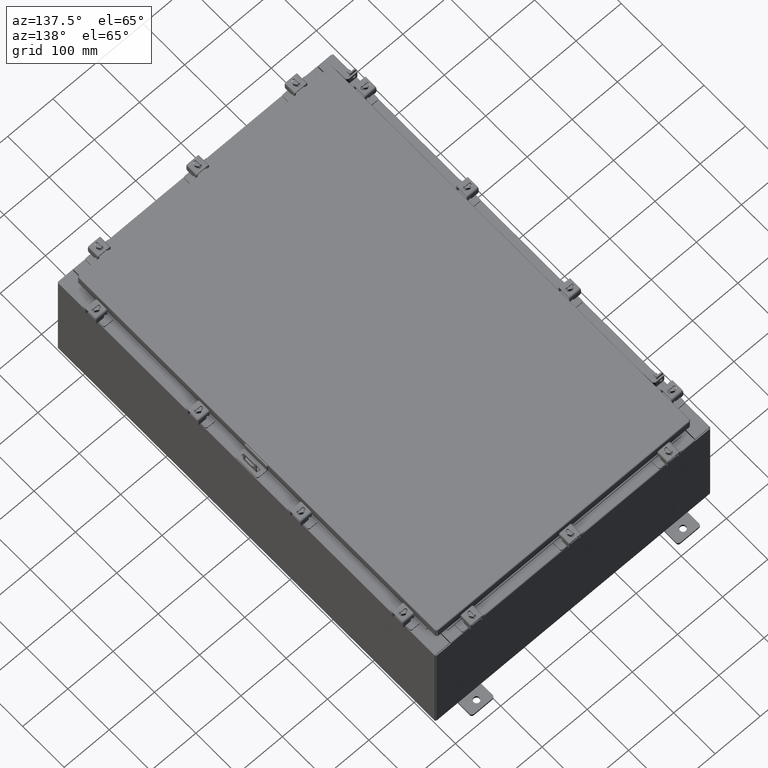
[diagram: clean part render]
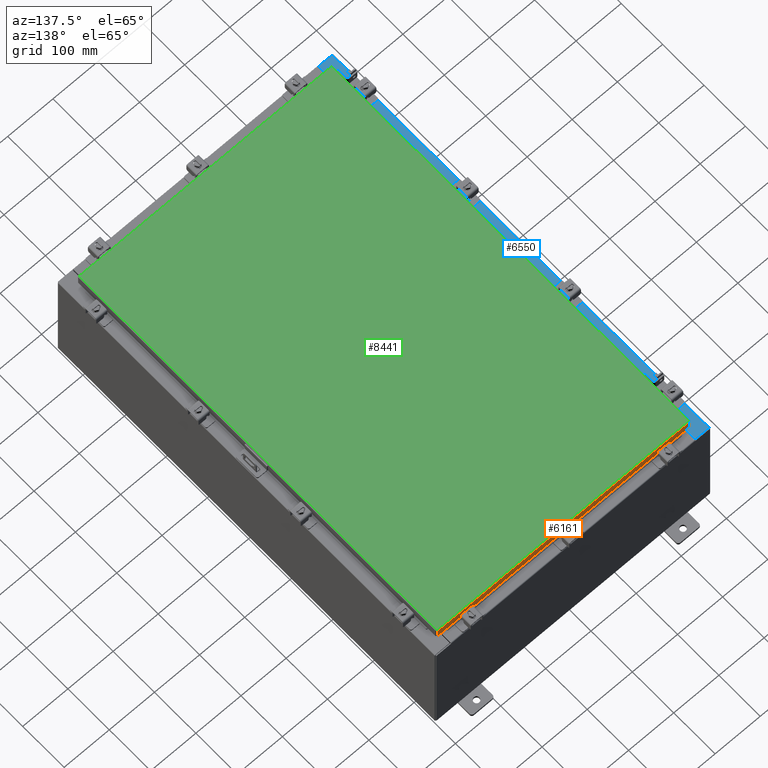
[diagram: same view with three faces highlighted in distinct colors, each labeled with its STEP entity id]
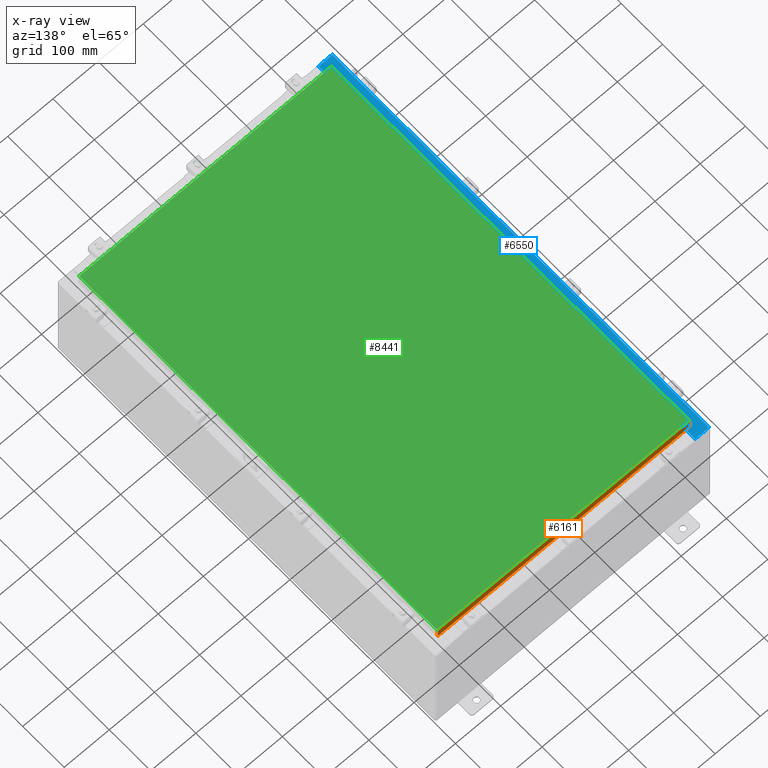
[diagram: x-ray of the same camera — body ghosted, the three highlighted faces saturated]
A machine part, auxiliary view with three faces highlighted in distinct colors.
The next image is the same camera in x-ray (body ghosted, the three faces saturated) — at least one of them is partly hidden behind the body in this view.
Their STEP definitions:

[orange] entity #6161 — the highlighted planar face has unit normal (0, -1, -0).
#257 = ORIENTED_EDGE ( 'NONE', *, *, #5360, .F. ) ;
#366 = DIRECTION ( 'NONE',  ( -1.000000000000000000, -3.475696988576942200E-031, -9.473942235605600700E-046 ) ) ;
#1143 = VERTEX_POINT ( 'NONE', #15936 ) ;
#1236 = DIRECTION ( 'NONE',  ( 1.000000000000000000, -0.0000000000000000000, -0.0000000000000000000 ) ) ;
#1564 = VERTEX_POINT ( 'NONE', #11333 ) ;
#1575 = CARTESIAN_POINT ( 'NONE',  ( -10.23915786437626700, 17.09399999999999100, -0.8500000000000033100 ) ) ;
#2211 = VERTEX_POINT ( 'NONE', #4042 ) ;
#3125 = VECTOR ( 'NONE', #22462, 39.37007874015748100 ) ;
#3257 = CARTESIAN_POINT ( 'NONE',  ( -5.941356432273423300E-030, 17.09399999999999800, 4.844676449176213100E-014 ) ) ;
#3704 = DIRECTION ( 'NONE',  ( 0.0000000000000000000, 2.818880942772350300E-015, -1.000000000000000000 ) ) ;
#4042 = CARTESIAN_POINT ( 'NONE',  ( 10.98915786437626700, 17.09400000000000100, -0.8499999999999996400 ) ) ;
#4133 = DIRECTION ( 'NONE',  ( -0.0000000000000000000, 2.818880942772350300E-015, -1.000000000000000000 ) ) ;
#4573 = DIRECTION ( 'NONE',  ( 0.0000000000000000000, 2.818880942772350300E-015, -1.000000000000000000 ) ) ;
#4664 = CARTESIAN_POINT ( 'NONE',  ( -10.98915786437626900, 17.09399999999999800, -0.08770000000000007000 ) ) ;
#4717 = LINE ( 'NONE', #11278, #13715 ) ;
#4730 = EDGE_CURVE ( 'NONE', #17479, #1564, #18421, .T. ) ;
#4869 = ORIENTED_EDGE ( 'NONE', *, *, #17390, .F. ) ;
#5188 = VECTOR ( 'NONE', #4573, 39.37007874015748100 ) ;
#5360 = EDGE_CURVE ( 'NONE', #1564, #2211, #11324, .T. ) ;
#5734 = LINE ( 'NONE', #9916, #5188 ) ;
#6000 = CARTESIAN_POINT ( 'NONE',  ( -10.23915786437626700, 17.09399999999999100, -0.8500000000000033100 ) ) ;
#6161 = ADVANCED_FACE ( 'NONE', ( #21493 ), #21343, .F. ) ;
#7158 = EDGE_CURVE ( 'NONE', #1143, #18338, #16647, .T. ) ;
#7351 = CARTESIAN_POINT ( 'NONE',  ( -11.07800000000000300, 17.09400000000000100, -0.8500000000000024200 ) ) ;
#7467 = DIRECTION ( 'NONE',  ( 1.000000000000000000, -4.379057701015054300E-047, 1.233005954894504400E-016 ) ) ;
#8084 = CARTESIAN_POINT ( 'NONE',  ( -11.07800000000000300, 17.09399999999999800, -0.08770000000000007000 ) ) ;
#8538 = DIRECTION ( 'NONE',  ( 3.475696988576941300E-031, -1.000000000000000000, -2.818880942772350300E-015 ) ) ;
#9916 = CARTESIAN_POINT ( 'NONE',  ( 10.98915786437626700, 17.09399999999999800, 4.844676449176213100E-014 ) ) ;
#10973 = ORIENTED_EDGE ( 'NONE', *, *, #4730, .F. ) ;
#11278 = CARTESIAN_POINT ( 'NONE',  ( -10.98915786437626900, 17.09399999999999800, -0.07469999999999978000 ) ) ;
#11324 = LINE ( 'NONE', #7351, #16138 ) ;
#11333 = CARTESIAN_POINT ( 'NONE',  ( 10.23915786437626700, 17.09399999999999100, -0.8500000000000033100 ) ) ;
#13630 = VECTOR ( 'NONE', #1236, 39.37007874015748100 ) ;
#13715 = VECTOR ( 'NONE', #4133, 39.37007874015748100 ) ;
#13745 = VERTEX_POINT ( 'NONE', #18959 ) ;
#14355 = EDGE_CURVE ( 'NONE', #1143, #2211, #5734, .T. ) ;
#15936 = CARTESIAN_POINT ( 'NONE',  ( 10.98915786437626700, 17.09399999999999800, -0.08770000000000007000 ) ) ;
#16138 = VECTOR ( 'NONE', #7467, 39.37007874015748100 ) ;
#16307 = AXIS2_PLACEMENT_3D ( 'NONE', #3257, #8538, #3704 ) ;
#16647 = LINE ( 'NONE', #8084, #21443 ) ;
#17123 = CARTESIAN_POINT ( 'NONE',  ( -11.07800000000000300, 17.09400000000000100, -0.8500000000000024200 ) ) ;
#17390 = EDGE_CURVE ( 'NONE', #13745, #17479, #22293, .T. ) ;
#17479 = VERTEX_POINT ( 'NONE', #6000 ) ;
#18338 = VERTEX_POINT ( 'NONE', #4664 ) ;
#18421 = LINE ( 'NONE', #1575, #13630 ) ;
#18959 = CARTESIAN_POINT ( 'NONE',  ( -10.98915786437626900, 17.09400000000000100, -0.8500000000000024200 ) ) ;
#19112 = ORIENTED_EDGE ( 'NONE', *, *, #7158, .F. ) ;
#19791 = EDGE_LOOP ( 'NONE', ( #19112, #21603, #257, #10973, #4869, #22331 ) ) ;
#21343 = PLANE ( 'NONE',  #16307 ) ;
#21443 = VECTOR ( 'NONE', #366, 39.37007874015748100 ) ;
#21493 = FACE_OUTER_BOUND ( 'NONE', #19791, .T. ) ;
#21603 = ORIENTED_EDGE ( 'NONE', *, *, #14355, .T. ) ;
#22214 = EDGE_CURVE ( 'NONE', #18338, #13745, #4717, .T. ) ;
#22293 = LINE ( 'NONE', #17123, #3125 ) ;
#22331 = ORIENTED_EDGE ( 'NONE', *, *, #22214, .F. ) ;
#22462 = DIRECTION ( 'NONE',  ( 1.000000000000000000, -4.379057701015054300E-047, 1.233005954894504400E-016 ) ) ;

[blue] entity #6550 — the highlighted planar face has unit normal (0, 0, -1).
#12 = ORIENTED_EDGE ( 'NONE', *, *, #7689, .T. ) ;
#501 = ORIENTED_EDGE ( 'NONE', *, *, #11454, .F. ) ;
#1060 = ORIENTED_EDGE ( 'NONE', *, *, #8304, .F. ) ;
#1183 = LINE ( 'NONE', #22670, #10194 ) ;
#1691 = VERTEX_POINT ( 'NONE', #6691 ) ;
#1899 = LINE ( 'NONE', #17044, #10335 ) ;
#1998 = CARTESIAN_POINT ( 'NONE',  ( -10.69970000000003700, -17.92530000000000400, 9.925300000000007100 ) ) ;
#2159 = EDGE_CURVE ( 'NONE', #16668, #3279, #18136, .T. ) ;
#2389 = VERTEX_POINT ( 'NONE', #5900 ) ;
#2523 = CARTESIAN_POINT ( 'NONE',  ( -7.105562016127570400E-014, 17.92529999999999600, 9.925300000000083500 ) ) ;
#2751 = CARTESIAN_POINT ( 'NONE',  ( -10.71270000000003900, 16.59375000000000000, 9.925300000000007100 ) ) ;
#3042 = VERTEX_POINT ( 'NONE', #16907 ) ;
#3078 = CARTESIAN_POINT ( 'NONE',  ( -11.91230000000003600, -17.92530000000000400, 9.925299999999998200 ) ) ;
#3279 = VERTEX_POINT ( 'NONE', #15857 ) ;
#4526 = DIRECTION ( 'NONE',  ( -1.000000000000000000, 0.0000000000000000000, -7.132762385546384700E-015 ) ) ;
#4554 = AXIS2_PLACEMENT_3D ( 'NONE', #6300, #4588, #4526 ) ;
#4588 = DIRECTION ( 'NONE',  ( 7.132762385546384700E-015, 0.0000000000000000000, -1.000000000000000000 ) ) ;
#5108 = ORIENTED_EDGE ( 'NONE', *, *, #20271, .F. ) ;
#5297 = AXIS2_PLACEMENT_3D ( 'NONE', #11483, #11456, #11298 ) ;
#5638 = DIRECTION ( 'NONE',  ( -0.0000000000000000000, -1.000000000000000000, -0.0000000000000000000 ) ) ;
#5900 = CARTESIAN_POINT ( 'NONE',  ( -11.91230000000003600, 17.92529999999999600, 9.925299999999998200 ) ) ;
#5960 = ORIENTED_EDGE ( 'NONE', *, *, #10159, .T. ) ;
#5968 = DIRECTION ( 'NONE',  ( -1.000000000000000000, -4.340572780399910900E-014, 0.0000000000000000000 ) ) ;
#6035 = EDGE_CURVE ( 'NONE', #7876, #16668, #19568, .T. ) ;
#6050 = CARTESIAN_POINT ( 'NONE',  ( -10.69970000000003700, 16.63110000000000000, 9.925300000000007100 ) ) ;
#6147 = PLANE ( 'NONE',  #4554 ) ;
#6237 = DIRECTION ( 'NONE',  ( 1.000000000000000000, -8.758115402030108600E-047, 7.132762385546384700E-015 ) ) ;
#6300 = CARTESIAN_POINT ( 'NONE',  ( -7.105562016127570400E-014, 0.0000000000000000000, 9.925300000000083500 ) ) ;
#6550 = ADVANCED_FACE ( 'NONE', ( #20094 ), #6147, .F. ) ;
#6670 = EDGE_CURVE ( 'NONE', #17532, #1691, #17263, .T. ) ;
#6691 = CARTESIAN_POINT ( 'NONE',  ( -10.69970000000003700, -16.63109999999998900, 9.925300000000007100 ) ) ;
#6756 = EDGE_CURVE ( 'NONE', #3042, #17322, #1183, .T. ) ;
#6950 = EDGE_CURVE ( 'NONE', #3279, #17532, #11585, .T. ) ;
#6996 = CARTESIAN_POINT ( 'NONE',  ( -10.75005000000003700, 16.59375000000000000, 9.925300000000007100 ) ) ;
#7460 = AXIS2_PLACEMENT_3D ( 'NONE', #10156, #22772, #11965 ) ;
#7671 = CARTESIAN_POINT ( 'NONE',  ( -10.71270000000003900, -16.59374999999998900, 9.925300000000007100 ) ) ;
#7689 = EDGE_CURVE ( 'NONE', #12288, #1691, #14093, .T. ) ;
#7876 = VERTEX_POINT ( 'NONE', #2751 ) ;
#8037 = CARTESIAN_POINT ( 'NONE',  ( -10.75005000000003700, 16.63110000000000000, 9.925300000000007100 ) ) ;
#8304 = EDGE_CURVE ( 'NONE', #3042, #20178, #21403, .T. ) ;
#8518 = DIRECTION ( 'NONE',  ( 1.000000000000000000, 0.0000000000000000000, 0.0000000000000000000 ) ) ;
#8548 = VECTOR ( 'NONE', #13493, 39.37007874015748100 ) ;
#9736 = ORIENTED_EDGE ( 'NONE', *, *, #6950, .F. ) ;
#9906 = DIRECTION ( 'NONE',  ( -0.0000000000000000000, 1.000000000000000000, -0.0000000000000000000 ) ) ;
#9910 = ORIENTED_EDGE ( 'NONE', *, *, #6756, .T. ) ;
#9915 = ORIENTED_EDGE ( 'NONE', *, *, #19738, .F. ) ;
#10156 = CARTESIAN_POINT ( 'NONE',  ( -10.75005000000003700, 16.61242499999999800, 9.925300000000007100 ) ) ;
#10159 = EDGE_CURVE ( 'NONE', #21037, #12288, #1899, .T. ) ;
#10194 = VECTOR ( 'NONE', #21829, 39.37007874015748100 ) ;
#10335 = VECTOR ( 'NONE', #6237, 39.37007874015748100 ) ;
#10729 = EDGE_CURVE ( 'NONE', #17322, #2389, #10868, .T. ) ;
#10868 = LINE ( 'NONE', #2523, #15103 ) ;
#10938 = LINE ( 'NONE', #17507, #14591 ) ;
#10940 = VECTOR ( 'NONE', #9906, 39.37007874015748100 ) ;
#10992 = DIRECTION ( 'NONE',  ( 1.000000000000000000, -4.340572780399910900E-014, 0.0000000000000000000 ) ) ;
#11298 = DIRECTION ( 'NONE',  ( 1.000000000000000000, 0.0000000000000000000, 0.0000000000000000000 ) ) ;
#11454 = EDGE_CURVE ( 'NONE', #21037, #2389, #21657, .T. ) ;
#11456 = DIRECTION ( 'NONE',  ( -7.132762385546384700E-015, -0.0000000000000000000, 1.000000000000000000 ) ) ;
#11483 = CARTESIAN_POINT ( 'NONE',  ( -10.75005000000003700, -16.61242499999999100, 9.925300000000007100 ) ) ;
#11585 = CIRCLE ( 'NONE', #5297, 0.01867499999999949400 ) ;
#11885 = VECTOR ( 'NONE', #10992, 39.37007874015748100 ) ;
#11893 = CARTESIAN_POINT ( 'NONE',  ( -10.71270000000003900, -16.59374999999998900, 9.925300000000007100 ) ) ;
#11965 = DIRECTION ( 'NONE',  ( 1.000000000000000000, 0.0000000000000000000, 0.0000000000000000000 ) ) ;
#12046 = CIRCLE ( 'NONE', #7460, 0.01867499999999949400 ) ;
#12252 = ORIENTED_EDGE ( 'NONE', *, *, #2159, .F. ) ;
#12288 = VERTEX_POINT ( 'NONE', #1998 ) ;
#13155 = ORIENTED_EDGE ( 'NONE', *, *, #6035, .F. ) ;
#13442 = CARTESIAN_POINT ( 'NONE',  ( -11.91230000000003600, 17.92529999999999600, 9.925299999999998200 ) ) ;
#13493 = DIRECTION ( 'NONE',  ( -1.000000000000000000, 0.0000000000000000000, 0.0000000000000000000 ) ) ;
#14093 = LINE ( 'NONE', #19232, #22566 ) ;
#14591 = VECTOR ( 'NONE', #8518, 39.37007874015748100 ) ;
#14648 = CARTESIAN_POINT ( 'NONE',  ( -10.71270000000003900, 16.59374999999999600, 9.925300000000007100 ) ) ;
#14726 = VECTOR ( 'NONE', #5638, 39.37007874015748100 ) ;
#15103 = VECTOR ( 'NONE', #18783, 39.37007874015748100 ) ;
#15857 = CARTESIAN_POINT ( 'NONE',  ( -10.75005000000003700, -16.59374999999998900, 9.925300000000007100 ) ) ;
#16450 = ORIENTED_EDGE ( 'NONE', *, *, #6670, .F. ) ;
#16608 = VECTOR ( 'NONE', #5968, 39.37007874015748100 ) ;
#16668 = VERTEX_POINT ( 'NONE', #7671 ) ;
#16882 = CARTESIAN_POINT ( 'NONE',  ( -10.75005000000003700, -16.63109999999998900, 9.925300000000007100 ) ) ;
#16907 = CARTESIAN_POINT ( 'NONE',  ( -10.69970000000003700, 16.63110000000000000, 9.925300000000007100 ) ) ;
#17044 = CARTESIAN_POINT ( 'NONE',  ( -7.105562016127570400E-014, -17.92530000000000400, 9.925300000000083500 ) ) ;
#17263 = LINE ( 'NONE', #17646, #11885 ) ;
#17322 = VERTEX_POINT ( 'NONE', #18705 ) ;
#17507 = CARTESIAN_POINT ( 'NONE',  ( -10.75005000000003700, 16.59375000000000000, 9.925300000000007100 ) ) ;
#17532 = VERTEX_POINT ( 'NONE', #16882 ) ;
#17646 = CARTESIAN_POINT ( 'NONE',  ( -10.75005000000003700, -16.63109999999998900, 9.925300000000007100 ) ) ;
#18136 = LINE ( 'NONE', #11893, #8548 ) ;
#18606 = EDGE_LOOP ( 'NONE', ( #1060, #9910, #22676, #501, #5960, #12, #16450, #9736, #12252, #13155, #9915, #5108 ) ) ;
#18705 = CARTESIAN_POINT ( 'NONE',  ( -10.69970000000003700, 17.92529999999999600, 9.925300000000007100 ) ) ;
#18783 = DIRECTION ( 'NONE',  ( -1.000000000000000000, -1.087045829762336900E-031, -7.132762385546384700E-015 ) ) ;
#19001 = DIRECTION ( 'NONE',  ( -4.276128853718621600E-031, 1.000000000000000000, -3.050061104355376000E-045 ) ) ;
#19232 = CARTESIAN_POINT ( 'NONE',  ( -10.69970000000003700, -4.575329589613298800E-030, 9.925300000000007100 ) ) ;
#19568 = LINE ( 'NONE', #14648, #14726 ) ;
#19738 = EDGE_CURVE ( 'NONE', #23339, #7876, #10938, .T. ) ;
#20094 = FACE_OUTER_BOUND ( 'NONE', #18606, .T. ) ;
#20178 = VERTEX_POINT ( 'NONE', #8037 ) ;
#20271 = EDGE_CURVE ( 'NONE', #20178, #23339, #12046, .T. ) ;
#21037 = VERTEX_POINT ( 'NONE', #3078 ) ;
#21403 = LINE ( 'NONE', #6050, #16608 ) ;
#21657 = LINE ( 'NONE', #13442, #10940 ) ;
#21829 = DIRECTION ( 'NONE',  ( -4.276128853718621600E-031, 1.000000000000000000, -3.050061104355376000E-045 ) ) ;
#22566 = VECTOR ( 'NONE', #19001, 39.37007874015748100 ) ;
#22670 = CARTESIAN_POINT ( 'NONE',  ( -10.69970000000003700, -4.575329589613298800E-030, 9.925300000000007100 ) ) ;
#22676 = ORIENTED_EDGE ( 'NONE', *, *, #10729, .T. ) ;
#22772 = DIRECTION ( 'NONE',  ( -7.132762385546384700E-015, -0.0000000000000000000, 1.000000000000000000 ) ) ;
#23339 = VERTEX_POINT ( 'NONE', #6996 ) ;

[green] entity #8441 — the highlighted planar face has unit normal (0, 0, -1).
#819 = CARTESIAN_POINT ( 'NONE',  ( -10.99030000000000100, -17.00630000000000000, 8.878505979408856000E-016 ) ) ;
#1748 = DIRECTION ( 'NONE',  ( 0.0000000000000000000, 1.000000000000000000, 0.0000000000000000000 ) ) ;
#2131 = DIRECTION ( 'NONE',  ( -1.000000000000000000, 0.0000000000000000000, -0.0000000000000000000 ) ) ;
#2207 = VERTEX_POINT ( 'NONE', #18316 ) ;
#3854 = DIRECTION ( 'NONE',  ( 0.0000000000000000000, 0.0000000000000000000, -1.000000000000000000 ) ) ;
#3885 = VECTOR ( 'NONE', #1748, 39.37007874015748100 ) ;
#3924 = CARTESIAN_POINT ( 'NONE',  ( 0.0000000000000000000, 0.0000000000000000000, 0.0000000000000000000 ) ) ;
#4603 = LINE ( 'NONE', #21126, #14714 ) ;
#5386 = ORIENTED_EDGE ( 'NONE', *, *, #19904, .T. ) ;
#5927 = ORIENTED_EDGE ( 'NONE', *, *, #13371, .T. ) ;
#6443 = VERTEX_POINT ( 'NONE', #11751 ) ;
#7118 = VERTEX_POINT ( 'NONE', #8954 ) ;
#7415 = VECTOR ( 'NONE', #9891, 39.37007874015748100 ) ;
#7754 = VECTOR ( 'NONE', #10726, 39.37007874015748100 ) ;
#7975 = VERTEX_POINT ( 'NONE', #13605 ) ;
#8441 = ADVANCED_FACE ( 'NONE', ( #13800 ), #11014, .F. ) ;
#8954 = CARTESIAN_POINT ( 'NONE',  ( -10.99030000000000500, 17.00630000000000000, -2.390366994456230300E-015 ) ) ;
#9891 = DIRECTION ( 'NONE',  ( 1.000000000000000000, -0.0000000000000000000, -0.0000000000000000000 ) ) ;
#10726 = DIRECTION ( 'NONE',  ( -1.000000000000000000, -0.0000000000000000000, -0.0000000000000000000 ) ) ;
#11014 = PLANE ( 'NONE',  #13927 ) ;
#11751 = CARTESIAN_POINT ( 'NONE',  ( 10.99029999999999800, -17.00630000000000300, -1.297627796990525000E-015 ) ) ;
#12341 = LINE ( 'NONE', #12515, #3885 ) ;
#12515 = CARTESIAN_POINT ( 'NONE',  ( 10.99029999999999800, -17.00630000000000300, -1.297627796990525000E-015 ) ) ;
#13102 = LINE ( 'NONE', #14282, #7754 ) ;
#13371 = EDGE_CURVE ( 'NONE', #2207, #7118, #13102, .T. ) ;
#13605 = CARTESIAN_POINT ( 'NONE',  ( -10.99030000000000100, -17.00630000000000000, 8.878505979408856000E-016 ) ) ;
#13800 = FACE_OUTER_BOUND ( 'NONE', #22334, .T. ) ;
#13927 = AXIS2_PLACEMENT_3D ( 'NONE', #3924, #3854, #2131 ) ;
#14282 = CARTESIAN_POINT ( 'NONE',  ( 10.99029999999999800, 17.00630000000000000, -2.048885995248197400E-016 ) ) ;
#14714 = VECTOR ( 'NONE', #22945, 39.37007874015748100 ) ;
#14810 = EDGE_CURVE ( 'NONE', #7975, #6443, #17012, .T. ) ;
#15587 = EDGE_CURVE ( 'NONE', #7118, #7975, #4603, .T. ) ;
#17012 = LINE ( 'NONE', #819, #7415 ) ;
#18316 = CARTESIAN_POINT ( 'NONE',  ( 10.99029999999999800, 17.00630000000000000, -2.048885995248197400E-016 ) ) ;
#18918 = ORIENTED_EDGE ( 'NONE', *, *, #14810, .T. ) ;
#19904 = EDGE_CURVE ( 'NONE', #6443, #2207, #12341, .T. ) ;
#21126 = CARTESIAN_POINT ( 'NONE',  ( -10.99030000000000500, 17.00630000000000000, -2.390366994456230300E-015 ) ) ;
#22334 = EDGE_LOOP ( 'NONE', ( #18918, #5386, #5927, #22663 ) ) ;
#22663 = ORIENTED_EDGE ( 'NONE', *, *, #15587, .T. ) ;
#22945 = DIRECTION ( 'NONE',  ( 0.0000000000000000000, -1.000000000000000000, 0.0000000000000000000 ) ) ;